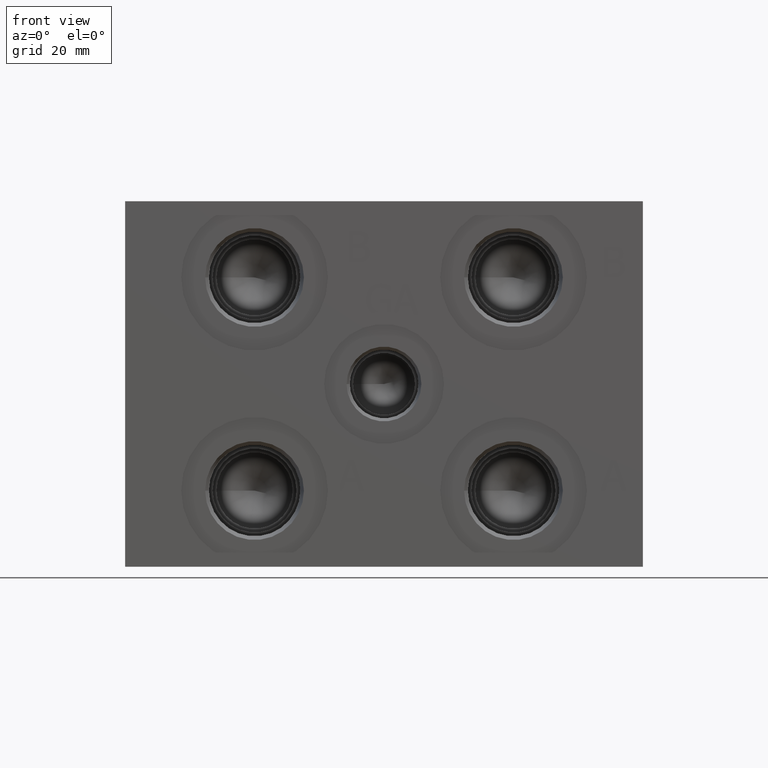
[diagram: clean part render]
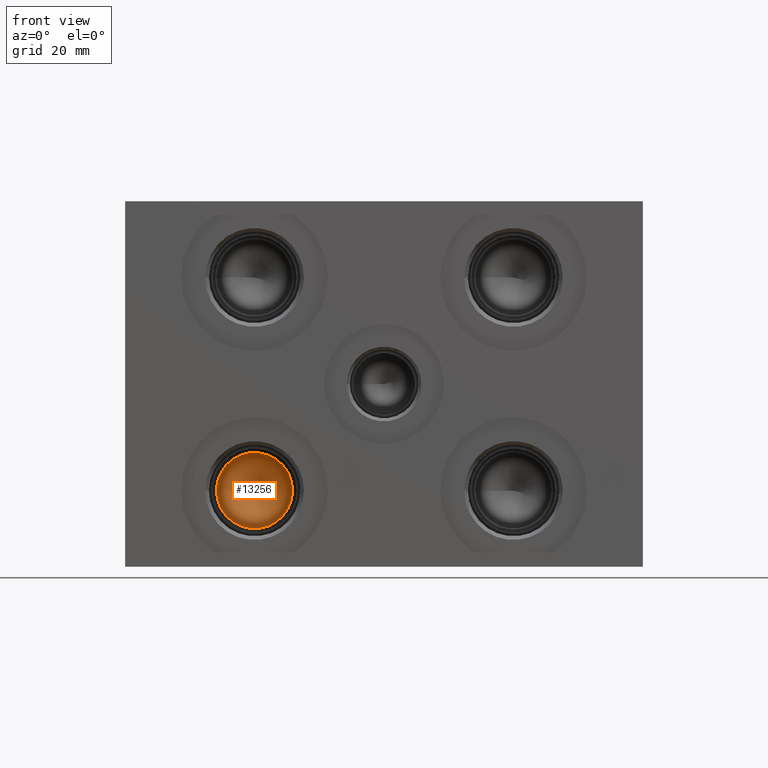
[diagram: same view with one face highlighted and labeled with its STEP entity id]
A machine part, front view. The second image highlights one B-rep face of the part: STEP entity #13256.
In plain terms, the highlighted conical surface has half-angle 60 deg.
Its self-contained STEP definition (entity closure, byte-faithful):
#43=CONICAL_SURFACE('',#13949,3.96875,1.0471975511966);
#329=CIRCLE('',#13950,7.9375);
#330=CIRCLE('',#13951,7.9375);
#1722=FACE_OUTER_BOUND('',#2489,.T.);
#2489=EDGE_LOOP('',(#11315,#11316,#11317,#11318));
#3717=LINE('',#22693,#4891);
#4891=VECTOR('',#16466,3.96875);
#6070=VERTEX_POINT('',#22689);
#6071=VERTEX_POINT('',#22690);
#6072=VERTEX_POINT('',#22692);
#7871=EDGE_CURVE('',#6070,#6071,#329,.T.);
#7872=EDGE_CURVE('',#6071,#6072,#3717,.T.);
#7873=EDGE_CURVE('',#6071,#6070,#330,.T.);
#11315=ORIENTED_EDGE('',*,*,#7871,.T.);
#11316=ORIENTED_EDGE('',*,*,#7872,.T.);
#11317=ORIENTED_EDGE('',*,*,#7872,.F.);
#11318=ORIENTED_EDGE('',*,*,#7873,.T.);
#13256=ADVANCED_FACE('',(#1722),#43,.F.);
#13949=AXIS2_PLACEMENT_3D('',#22688,#16462,#16463);
#13950=AXIS2_PLACEMENT_3D('',#22691,#16464,#16465);
#13951=AXIS2_PLACEMENT_3D('',#22694,#16467,#16468);
#16462=DIRECTION('center_axis',(0.,-1.,0.));
#16463=DIRECTION('ref_axis',(1.,0.,0.));
#16464=DIRECTION('center_axis',(0.,-1.,0.));
#16465=DIRECTION('ref_axis',(1.,0.,0.));
#16466=DIRECTION('',(0.866025403784439,0.5,1.06057523872491E-16));
#16467=DIRECTION('center_axis',(0.,-1.,0.));
#16468=DIRECTION('ref_axis',(1.,0.,0.));
#22688=CARTESIAN_POINT('Origin',(26.9748,25.5239588808463,15.875));
#22689=CARTESIAN_POINT('',(34.9123,23.2326,15.875));
#22690=CARTESIAN_POINT('',(19.0373,23.2326,15.875));
#22691=CARTESIAN_POINT('Origin',(26.9748,23.2326,15.875));
#22692=CARTESIAN_POINT('',(26.9748,27.8153177616927,15.875));
#22693=CARTESIAN_POINT('',(23.00605,25.5239588808463,15.875));
#22694=CARTESIAN_POINT('Origin',(26.9748,23.2326,15.875));